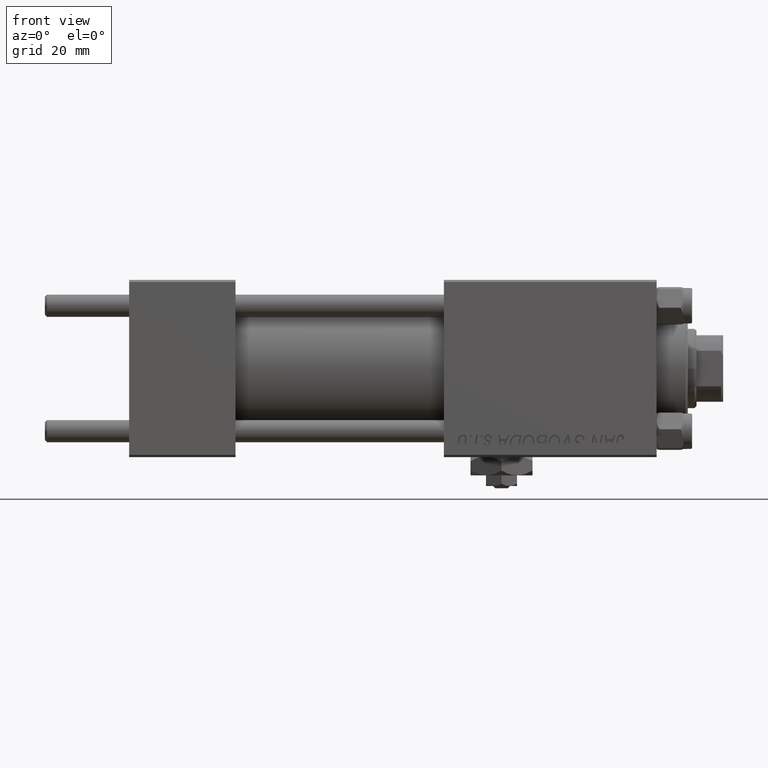
[diagram: clean part render]
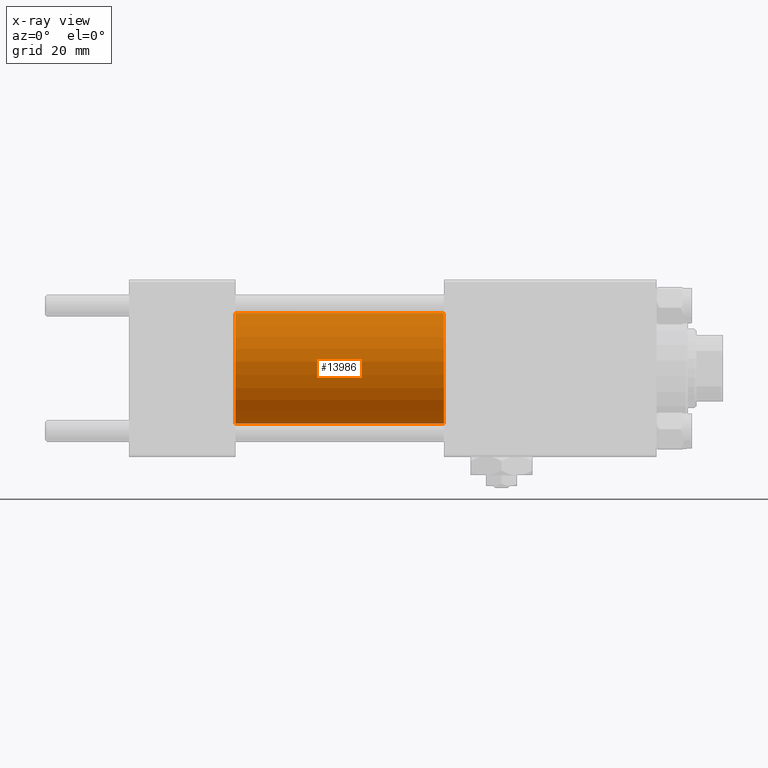
[diagram: x-ray — body ghosted, one internal face saturated and labeled with its STEP entity id]
A machine part, front view, then the same camera in x-ray: the body is ghosted and one INTERNAL B-rep face — a face not visible from any outside direction — is saturated and labeled: STEP entity #13986.
In plain terms, the highlighted cylindrical surface (partial cylindrical patch) has radius 12.5 mm, axis along (-1, -0, -0).
Its self-contained STEP definition (entity closure, byte-faithful):
#2867 = EDGE_CURVE ( 'NONE', #51572, #23593, #16201, .T. ) ;
#3237 = AXIS2_PLACEMENT_3D ( 'NONE', #30342, #50920, #34764 ) ;
#3791 = VERTEX_POINT ( 'NONE', #12260 ) ;
#3843 = DIRECTION ( 'NONE',  ( 1.000000000000000000, 0.000000000000000000, 0.000000000000000000 ) ) ;
#4382 = EDGE_LOOP ( 'NONE', ( #49700, #16597, #16534, #46794 ) ) ;
#5298 = AXIS2_PLACEMENT_3D ( 'NONE', #5465, #30484, #26310 ) ;
#5465 = CARTESIAN_POINT ( 'NONE',  ( 71.00000000000001421, 0.000000000000000000, 0.000000000000000000 ) ) ;
#6224 = CARTESIAN_POINT ( 'NONE',  ( 71.00000000000001421, 0.000000000000000000, 12.49999999999999645 ) ) ;
#9619 = DIRECTION ( 'NONE',  ( -1.000000000000000000, -0.000000000000000000, -0.000000000000000000 ) ) ;
#12260 = CARTESIAN_POINT ( 'NONE',  ( 71.00000000000001421, 0.000000000000000000, 12.49999999999999645 ) ) ;
#12888 = AXIS2_PLACEMENT_3D ( 'NONE', #38779, #3843, #18971 ) ;
#13986 = ADVANCED_FACE ( 'NONE', ( #26051 ), #30220, .F. ) ;
#16201 = CIRCLE ( 'NONE', #12888, 12.49999999999999645 ) ;
#16534 = ORIENTED_EDGE ( 'NONE', *, *, #2867, .F. ) ;
#16597 = ORIENTED_EDGE ( 'NONE', *, *, #38702, .T. ) ;
#18971 = DIRECTION ( 'NONE',  ( 0.000000000000000000, 0.000000000000000000, -1.000000000000000000 ) ) ;
#19747 = LINE ( 'NONE', #35658, #38399 ) ;
#23490 = VECTOR ( 'NONE', #9619, 1000.000000000000000 ) ;
#23593 = VERTEX_POINT ( 'NONE', #32155 ) ;
#26051 = FACE_OUTER_BOUND ( 'NONE', #4382, .T. ) ;
#26310 = DIRECTION ( 'NONE',  ( 0.000000000000000000, 0.000000000000000000, 1.000000000000000000 ) ) ;
#27361 = CIRCLE ( 'NONE', #3237, 12.49999999999999645 ) ;
#30220 = CYLINDRICAL_SURFACE ( 'NONE', #5298, 12.49999999999999645 ) ;
#30342 = CARTESIAN_POINT ( 'NONE',  ( 71.00000000000001421, 0.000000000000000000, 0.000000000000000000 ) ) ;
#30484 = DIRECTION ( 'NONE',  ( -1.000000000000000000, -0.000000000000000000, -0.000000000000000000 ) ) ;
#30606 = CARTESIAN_POINT ( 'NONE',  ( 71.00000000000001421, 1.530808498934191127E-15, -12.49999999999999645 ) ) ;
#30992 = EDGE_CURVE ( 'NONE', #3791, #31044, #27361, .T. ) ;
#31044 = VERTEX_POINT ( 'NONE', #30606 ) ;
#32155 = CARTESIAN_POINT ( 'NONE',  ( 24.00000000000000000, 1.530808498934191127E-15, -12.49999999999999645 ) ) ;
#34764 = DIRECTION ( 'NONE',  ( 0.000000000000000000, 0.000000000000000000, -1.000000000000000000 ) ) ;
#35658 = CARTESIAN_POINT ( 'NONE',  ( 71.00000000000001421, 1.530808498934191127E-15, -12.49999999999999645 ) ) ;
#38399 = VECTOR ( 'NONE', #47642, 1000.000000000000000 ) ;
#38702 = EDGE_CURVE ( 'NONE', #31044, #23593, #19747, .T. ) ;
#38779 = CARTESIAN_POINT ( 'NONE',  ( 24.00000000000000000, 0.000000000000000000, 0.000000000000000000 ) ) ;
#45828 = LINE ( 'NONE', #6224, #23490 ) ;
#46794 = ORIENTED_EDGE ( 'NONE', *, *, #48824, .F. ) ;
#47642 = DIRECTION ( 'NONE',  ( -1.000000000000000000, -0.000000000000000000, -0.000000000000000000 ) ) ;
#47767 = CARTESIAN_POINT ( 'NONE',  ( 24.00000000000000000, 0.000000000000000000, 12.49999999999999645 ) ) ;
#48824 = EDGE_CURVE ( 'NONE', #3791, #51572, #45828, .T. ) ;
#49700 = ORIENTED_EDGE ( 'NONE', *, *, #30992, .T. ) ;
#50920 = DIRECTION ( 'NONE',  ( 1.000000000000000000, 0.000000000000000000, 0.000000000000000000 ) ) ;
#51572 = VERTEX_POINT ( 'NONE', #47767 ) ;